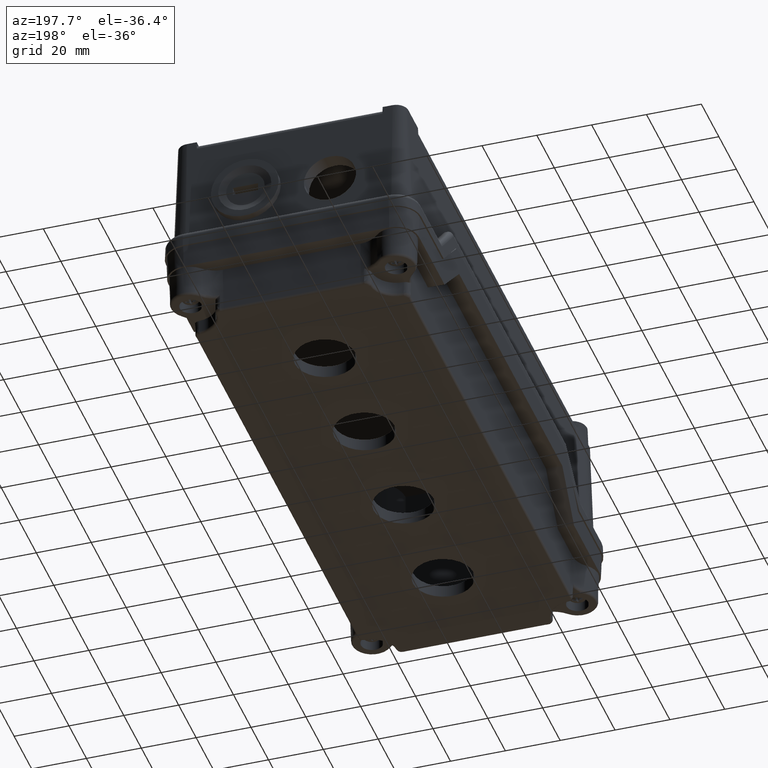
[diagram: clean part render]
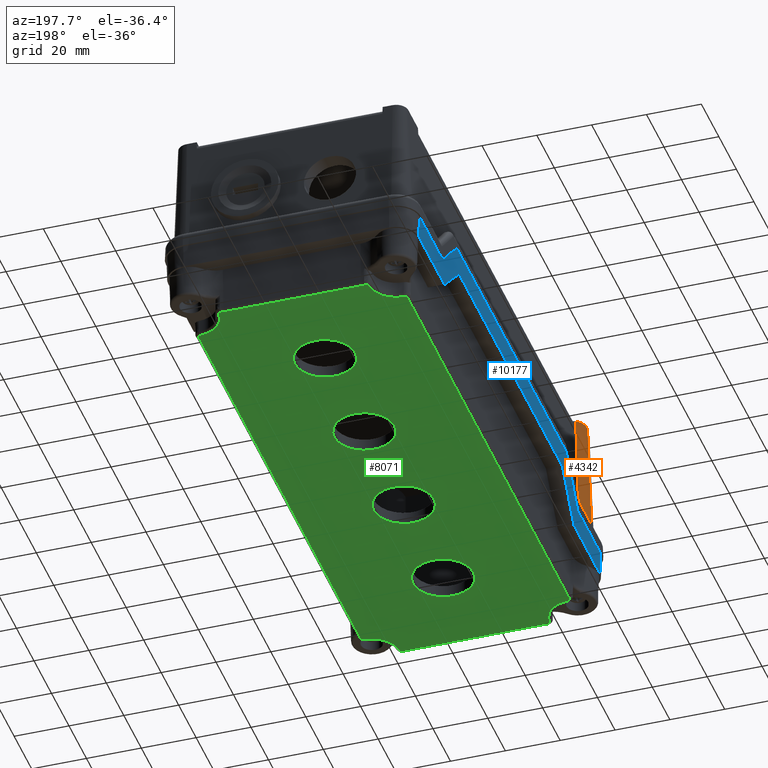
[diagram: same view with three faces highlighted in distinct colors, each labeled with its STEP entity id]
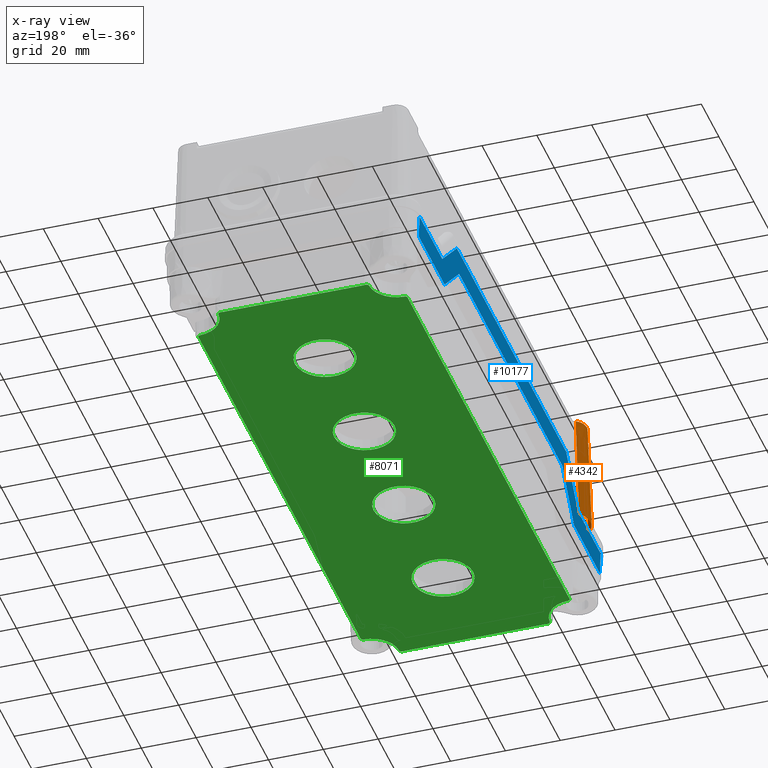
[diagram: x-ray of the same camera — body ghosted, the three highlighted faces saturated]
A machine part, auxiliary view with three faces highlighted in distinct colors.
The next image is the same camera in x-ray (body ghosted, the three faces saturated) — at least one of them is partly hidden behind the body in this view.
Their STEP definitions:

[orange] entity #4342 — the highlighted conical surface has half-angle 2 deg.
#1756=CARTESIAN_POINT('',(-12.974006270551000,-2.559175239061013,6.000000000000005));
#1757=VERTEX_POINT('',#1756);
#1758=CARTESIAN_POINT('',(-12.974006270551000,-11.241650742066010,6.000000000000005));
#1759=VERTEX_POINT('',#1758);
#1760=CARTESIAN_POINT('',(-12.974006270551005,-2.559175239061021,6.000000000000005));
#1761=CARTESIAN_POINT('',(-13.060904264474148,-2.666447606441090,6.000000000000005));
#1762=CARTESIAN_POINT('',(-13.144814452028172,-2.776305068785705,5.994354237025021));
#1763=CARTESIAN_POINT('',(-13.225557656022371,-2.888612788324794,5.984117410958196));
#1764=CARTESIAN_POINT('',(-13.645758073554033,-3.473079942312700,5.930843347325696));
#1765=CARTESIAN_POINT('',(-13.979199199724301,-4.124430074893436,5.752336188187653));
#1766=CARTESIAN_POINT('',(-14.203775100626366,-4.813077662472193,5.577234486236931));
#1767=CARTESIAN_POINT('',(-14.387930804323494,-5.377779309356375,5.433648389012003));
#1768=CARTESIAN_POINT('',(-14.499731291901773,-5.967532217360052,5.294007290955267));
#1769=CARTESIAN_POINT('',(-14.529813160494637,-6.570193104337078,5.256767648057474));
#1770=CARTESIAN_POINT('',(-14.535289148991174,-6.679899191052095,5.249988685657120));
#1771=CARTESIAN_POINT('',(-14.538052036311674,-6.789994687382909,5.246499435461611));
#1772=CARTESIAN_POINT('',(-14.538052036311674,-6.900412990563507,5.246499435461611));
#1773=CARTESIAN_POINT('',(-14.538052036311674,-7.447091790087899,5.246499435461611));
#1774=CARTESIAN_POINT('',(-14.470180084289195,-7.985827483101908,5.338858428683016));
#1775=CARTESIAN_POINT('',(-14.341541713597330,-8.506475028155927,5.459399469649103));
#1776=CARTESIAN_POINT('',(-14.174205645823845,-9.183746610629166,5.616202324754475));
#1777=CARTESIAN_POINT('',(-13.903014312537012,-9.832744098886380,5.810041916490904));
#1778=CARTESIAN_POINT('',(-13.545327437718711,-10.426963227790900,5.916661713486797));
#1779=CARTESIAN_POINT('',(-13.373797212271437,-10.711923477444600,5.967791679676187));
#1780=CARTESIAN_POINT('',(-13.182510471607332,-10.984259998664209,6.000000000000004));
#1781=CARTESIAN_POINT('',(-12.974006270551003,-11.241650742066000,6.000000000000005));
#1782=B_SPLINE_CURVE_WITH_KNOTS('',3,(#1760,#1761,#1762,#1763,#1764,#1765,#1766,#1767,#1768,#1769,#1770,#1771,#1772,#1773,#1774,#1775,#1776,#1777,#1778,#1779,#1780,#1781),.UNSPECIFIED.,.F.,.U.,(4,3,3,3,3,3,3,4),(2.922606312651110,2.965247774180107,3.187160691333260,3.369132707269389,3.402258198223569,3.566261838080886,3.779601948396805,3.881910083796028),.UNSPECIFIED.);
#1783=EDGE_CURVE('',#1757,#1759,#1782,.T.);
#2005=CARTESIAN_POINT('',(-11.905383820165135,-1.500589309104239,6.000000000000005));
#2006=VERTEX_POINT('',#2005);
#2007=CARTESIAN_POINT('',(-7.614908437115618,-6.900412990563511,6.000000000000005));
#2008=DIRECTION('',(0.0,0.0,-1.0));
#2009=DIRECTION('',(-1.0,0.0,0.0));
#2010=AXIS2_PLACEMENT_3D('',#2007,#2008,#2009);
#2011=CIRCLE('',#2010,6.896830779669909);
#2012=EDGE_CURVE('',#1757,#2006,#2011,.T.);
#2067=CARTESIAN_POINT('',(-11.905383820165135,-12.300236672022782,6.000000000000005));
#2068=VERTEX_POINT('',#2067);
#2075=CARTESIAN_POINT('',(-7.614908437115618,-6.900412990563511,6.000000000000005));
#2076=DIRECTION('',(0.0,0.0,-1.0));
#2077=DIRECTION('',(-1.0,0.0,0.0));
#2078=AXIS2_PLACEMENT_3D('',#2075,#2076,#2077);
#2079=CIRCLE('',#2078,6.896830779669909);
#2080=EDGE_CURVE('',#2068,#1759,#2079,.T.);
#2164=CARTESIAN_POINT('',(-10.538066863906121,-2.175440665169649,44.393579754555688));
#2165=VERTEX_POINT('',#2164);
#2211=CARTESIAN_POINT('',(-10.575957144919265,-2.185736012023800,44.069798993404994));
#2212=VERTEX_POINT('',#2211);
#2219=CARTESIAN_POINT('',(-10.538066863906085,-2.175440665169625,44.393579754555674));
#2220=CARTESIAN_POINT('',(-10.559745157438881,-2.184417122751136,44.285574253057369));
#2221=CARTESIAN_POINT('',(-10.572226306559820,-2.187798484328158,44.176636225623810));
#2222=CARTESIAN_POINT('',(-10.575957144919268,-2.185736012023834,44.069798993404987));
#2223=B_SPLINE_CURVE_WITH_KNOTS('',3,(#2219,#2220,#2221,#2222),.UNSPECIFIED.,.F.,.U.,(4,4),(0.572579742723573,0.604512241592894),.UNSPECIFIED.);
#2224=EDGE_CURVE('',#2212,#2165,#2223,.F.);
#2290=CARTESIAN_POINT('',(-11.905383820165131,-1.500589309104238,6.000000000000005));
#2291=CARTESIAN_POINT('',(-11.195643430090493,-1.843162660568200,26.324305575292669));
#2292=CARTESIAN_POINT('',(-10.575957144919265,-2.185736012023800,44.069798993404994));
#2293=B_SPLINE_CURVE_WITH_KNOTS('',2,(#2290,#2291,#2292),.UNSPECIFIED.,.F.,.U.,(3,3),(0.0,3.795830122196244),.UNSPECIFIED.);
#2294=EDGE_CURVE('',#2006,#2212,#2293,.T.);
#3971=CARTESIAN_POINT('',(-10.490180623006921,-2.252843641670209,47.0));
#3972=VERTEX_POINT('',#3971);
#3998=CARTESIAN_POINT('',(-10.490180623006921,-2.252843641670209,47.0));
#3999=DIRECTION('',(-0.018361225507949,0.029678953282320,-0.999390827019096));
#4000=VECTOR('',#3999,2.608008974045256);
#4001=LINE('',#3998,#4000);
#4002=EDGE_CURVE('',#3972,#2165,#4001,.T.);
#4036=CARTESIAN_POINT('',(-10.473632271003474,-11.558179519415560,47.0));
#4037=VERTEX_POINT('',#4036);
#4038=CARTESIAN_POINT('',(-7.614908437115618,-6.900412990563511,47.0));
#4039=DIRECTION('',(0.0,0.0,-1.0));
#4040=DIRECTION('',(-0.526117200614474,0.850412071420432,0.0));
#4041=AXIS2_PLACEMENT_3D('',#4038,#4039,#4040);
#4042=CIRCLE('',#4041,5.465079230508253);
#4043=EDGE_CURVE('',#4037,#3972,#4042,.T.);
#4314=CARTESIAN_POINT('',(-7.614908437115618,-6.900412990563511,46.000000000000007));
#4315=DIRECTION('',(0.0,0.0,-1.0));
#4316=DIRECTION('',(-1.0,0.0,0.0));
#4317=AXIS2_PLACEMENT_3D('',#4314,#4315,#4316);
#4318=CONICAL_SURFACE('',#4317,5.500000000000000,2.0);
#4319=CARTESIAN_POINT('',(-10.508553040495222,-11.577679383375887,46.000000000000007));
#4320=VERTEX_POINT('',#4319);
#4321=CARTESIAN_POINT('',(-10.508553040495222,-11.577679383375887,46.000000000000007));
#4322=CARTESIAN_POINT('',(-11.156889972481345,-11.938958027694440,27.434059402977002));
#4323=CARTESIAN_POINT('',(-11.905383820165131,-12.300236672022784,6.000000000000005));
#4324=B_SPLINE_CURVE_WITH_KNOTS('',2,(#4321,#4322,#4323),.UNSPECIFIED.,.F.,.U.,(3,3),(0.0,4.003091176781688),.UNSPECIFIED.);
#4325=EDGE_CURVE('',#4320,#2068,#4324,.T.);
#4326=ORIENTED_EDGE('',*,*,#4325,.F.);
#4327=CARTESIAN_POINT('',(-10.508553040495219,-11.577679383375855,46.0));
#4328=CARTESIAN_POINT('',(-10.491056182793738,-11.567929451329064,46.501044448794815));
#4329=CARTESIAN_POINT('',(-10.473632271003474,-11.558179519415560,47.000000000000021));
#4330=B_SPLINE_CURVE_WITH_KNOTS('',2,(#4327,#4328,#4329),.UNSPECIFIED.,.F.,.U.,(3,3),(0.010031039750195,0.110110897021433),.UNSPECIFIED.);
#4331=EDGE_CURVE('',#4320,#4037,#4330,.T.);
#4332=ORIENTED_EDGE('',*,*,#4331,.T.);
#4333=ORIENTED_EDGE('',*,*,#4043,.T.);
#4334=ORIENTED_EDGE('',*,*,#4002,.T.);
#4335=ORIENTED_EDGE('',*,*,#2224,.F.);
#4336=ORIENTED_EDGE('',*,*,#2294,.F.);
#4337=ORIENTED_EDGE('',*,*,#2012,.F.);
#4338=ORIENTED_EDGE('',*,*,#1783,.T.);
#4339=ORIENTED_EDGE('',*,*,#2080,.F.);
#4340=EDGE_LOOP('',(#4326,#4332,#4333,#4334,#4335,#4336,#4337,#4338,#4339));
#4341=FACE_OUTER_BOUND('',#4340,.T.);
#4342=ADVANCED_FACE('',(#4341),#4318,.T.);

[blue] entity #10177 — the highlighted planar face has unit normal (-0.9994, 0, -0.0349).
#9040=CARTESIAN_POINT('',(83.462640443142732,-67.297894880833113,23.499999999999986));
#9041=VERTEX_POINT('',#9040);
#9049=CARTESIAN_POINT('',(83.462640443142689,-37.773415432838235,23.499999999999986));
#9050=VERTEX_POINT('',#9049);
#9051=CARTESIAN_POINT('',(83.462640443142689,-37.773415432838235,23.499999999999986));
#9052=DIRECTION('',(0.0,-1.0,0.0));
#9053=VECTOR('',#9052,29.524479447994878);
#9054=LINE('',#9051,#9053);
#9055=EDGE_CURVE('',#9050,#9041,#9054,.T.);
#9100=CARTESIAN_POINT('',(83.986451985518912,-22.773415432838178,8.499999999999954));
#9101=VERTEX_POINT('',#9100);
#9102=CARTESIAN_POINT('',(83.986451985518912,-22.773415432838178,8.499999999999954));
#9103=DIRECTION('',(-0.024685188407832,-0.706891307583164,0.706891307583163));
#9104=VECTOR('',#9103,21.219669614108728);
#9105=LINE('',#9102,#9104);
#9106=EDGE_CURVE('',#9101,#9050,#9105,.T.);
#9139=CARTESIAN_POINT('',(83.986451985518883,95.177625671172009,8.499999999999981));
#9140=VERTEX_POINT('',#9139);
#9141=CARTESIAN_POINT('',(83.986451985518883,95.177625671172009,8.499999999999981));
#9142=DIRECTION('',(0.0,-1.0,0.0));
#9143=VECTOR('',#9142,117.951041104010190);
#9144=LINE('',#9141,#9143);
#9145=EDGE_CURVE('',#9140,#9101,#9144,.T.);
#9170=CARTESIAN_POINT('',(83.462640443142661,110.177625671171970,23.499999999999986));
#9171=VERTEX_POINT('',#9170);
#9172=CARTESIAN_POINT('',(83.462640443142661,110.177625671171970,23.499999999999986));
#9173=DIRECTION('',(0.024685188407832,-0.706891307583163,-0.706891307583165));
#9174=VECTOR('',#9173,21.219669614108639);
#9175=LINE('',#9172,#9174);
#9176=EDGE_CURVE('',#9171,#9140,#9175,.T.);
#9236=CARTESIAN_POINT('',(83.462640443142661,139.702105119166930,23.499999999999986));
#9237=VERTEX_POINT('',#9236);
#9238=CARTESIAN_POINT('',(83.462640443142661,139.702105119166930,23.499999999999986));
#9239=DIRECTION('',(0.0,-1.0,0.0));
#9240=VECTOR('',#9239,29.524479447994963);
#9241=LINE('',#9238,#9240);
#9242=EDGE_CURVE('',#9237,#9171,#9241,.T.);
#9369=CARTESIAN_POINT('',(83.759466983822577,-41.297894880833113,15.0));
#9370=VERTEX_POINT('',#9369);
#9377=CARTESIAN_POINT('',(83.759466983822577,-67.297894880833113,14.999999999999998));
#9378=VERTEX_POINT('',#9377);
#9379=CARTESIAN_POINT('',(83.759466983822577,-67.297894880833113,14.999999999999998));
#9380=DIRECTION('',(0.0,1.0,0.0));
#9381=VECTOR('',#9380,26.0);
#9382=LINE('',#9379,#9381);
#9383=EDGE_CURVE('',#9378,#9370,#9382,.T.);
#9423=CARTESIAN_POINT('',(84.283278526198742,98.702105119166902,7.667951E-015));
#9424=VERTEX_POINT('',#9423);
#9425=CARTESIAN_POINT('',(83.759466983822506,113.702105119166900,15.000000000000009));
#9426=VERTEX_POINT('',#9425);
#9427=CARTESIAN_POINT('',(84.283278526198742,98.702105119166902,7.667951E-015));
#9428=DIRECTION('',(-0.024685188407833,0.706891307583164,0.706891307583164));
#9429=VECTOR('',#9428,21.219669614108668);
#9430=LINE('',#9427,#9429);
#9431=EDGE_CURVE('',#9424,#9426,#9430,.T.);
#9503=CARTESIAN_POINT('',(84.283278526198785,-26.297894880833095,-7.640134E-015));
#9504=VERTEX_POINT('',#9503);
#9505=CARTESIAN_POINT('',(83.759466983822577,-41.297894880833113,15.0));
#9506=DIRECTION('',(0.024685188407831,0.706891307583164,-0.706891307583163));
#9507=VECTOR('',#9506,21.219669614108682);
#9508=LINE('',#9505,#9507);
#9509=EDGE_CURVE('',#9370,#9504,#9508,.T.);
#9590=CARTESIAN_POINT('',(83.759466983822506,139.702105119166930,15.000000000000014));
#9591=VERTEX_POINT('',#9590);
#9599=CARTESIAN_POINT('',(83.759466983822506,113.702105119166900,15.000000000000009));
#9600=DIRECTION('',(0.0,1.0,0.0));
#9601=VECTOR('',#9600,26.000000000000028);
#9602=LINE('',#9599,#9601);
#9603=EDGE_CURVE('',#9426,#9591,#9602,.T.);
#9844=CARTESIAN_POINT('',(83.759466983822577,-67.297894880833113,14.999999999999998));
#9845=DIRECTION('',(-0.034899496702500,0.0,0.999390827019096));
#9846=VECTOR('',#9845,8.505181126539972);
#9847=LINE('',#9844,#9846);
#9848=EDGE_CURVE('',#9378,#9041,#9847,.T.);
#9861=CARTESIAN_POINT('',(84.283278526198785,-26.297894880833095,-7.640134E-015));
#9862=DIRECTION('',(0.0,1.0,0.0));
#9863=VECTOR('',#9862,125.0);
#9864=LINE('',#9861,#9863);
#9865=EDGE_CURVE('',#9504,#9424,#9864,.T.);
#10149=CARTESIAN_POINT('',(83.759466983822506,139.702105119166930,15.000000000000014));
#10150=DIRECTION('',(-0.034899496702500,0.0,0.999390827019096));
#10151=VECTOR('',#10150,8.505181126539956);
#10152=LINE('',#10149,#10151);
#10153=EDGE_CURVE('',#9591,#9237,#10152,.T.);
#10158=CARTESIAN_POINT('',(84.283278526198728,139.702105119166930,0.0));
#10159=DIRECTION('',(0.999390827019096,3.430483E-016,0.034899496702501));
#10160=DIRECTION('',(0.0,1.0,0.0));
#10161=AXIS2_PLACEMENT_3D('',#10158,#10159,#10160);
#10162=PLANE('',#10161);
#10163=ORIENTED_EDGE('',*,*,#9106,.T.);
#10164=ORIENTED_EDGE('',*,*,#9055,.T.);
#10165=ORIENTED_EDGE('',*,*,#9848,.F.);
#10166=ORIENTED_EDGE('',*,*,#9383,.T.);
#10167=ORIENTED_EDGE('',*,*,#9509,.T.);
#10168=ORIENTED_EDGE('',*,*,#9865,.T.);
#10169=ORIENTED_EDGE('',*,*,#9431,.T.);
#10170=ORIENTED_EDGE('',*,*,#9603,.T.);
#10171=ORIENTED_EDGE('',*,*,#10153,.T.);
#10172=ORIENTED_EDGE('',*,*,#9242,.T.);
#10173=ORIENTED_EDGE('',*,*,#9176,.T.);
#10174=ORIENTED_EDGE('',*,*,#9145,.T.);
#10175=EDGE_LOOP('',(#10163,#10164,#10165,#10166,#10167,#10168,#10169,#10170,#10171,#10172,#10173,#10174));
#10176=FACE_OUTER_BOUND('',#10175,.T.);
#10177=ADVANCED_FACE('',(#10176),#10162,.T.);

[green] entity #8071 — the highlighted planar face has unit normal (-0, 0, -1).
#5871=CARTESIAN_POINT('',(-0.336741534578410,127.261391683954880,40.500000000000000));
#5872=VERTEX_POINT('',#5871);
#5888=CARTESIAN_POINT('',(-0.336741534578377,-54.857181445621052,40.500000000000000));
#5889=VERTEX_POINT('',#5888);
#5897=CARTESIAN_POINT('',(-0.336741534578377,-54.857181445621052,40.500000000000000));
#5898=DIRECTION('',(0.0,1.0,0.0));
#5899=VECTOR('',#5898,182.118573129575940);
#5900=LINE('',#5897,#5899);
#5901=EDGE_CURVE('',#5889,#5872,#5900,.T.);
#5911=CARTESIAN_POINT('',(-0.416955998710055,128.585317413578050,40.500000000000000));
#5912=VERTEX_POINT('',#5911);
#5922=CARTESIAN_POINT('',(-11.302430309385482,127.261391683954880,40.500000000000000));
#5923=DIRECTION('',(0.0,0.0,1.000000000000000));
#5924=DIRECTION('',(0.998177473758042,0.060346755356135,0.0));
#5925=AXIS2_PLACEMENT_3D('',#5922,#5923,#5924);
#5926=CIRCLE('',#5925,10.965688774807212);
#5927=EDGE_CURVE('',#5872,#5912,#5926,.T.);
#5939=CARTESIAN_POINT('',(-0.416955998710137,-56.181107175244236,40.500000000000000));
#5940=VERTEX_POINT('',#5939);
#5948=CARTESIAN_POINT('',(-11.302430309385379,-54.857181445621052,40.500000000000000));
#5949=DIRECTION('',(0.0,0.0,1.0));
#5950=DIRECTION('',(0.998177473758042,-0.060346755356137,0.0));
#5951=AXIS2_PLACEMENT_3D('',#5948,#5949,#5950);
#5952=CIRCLE('',#5951,10.965688774807031);
#5953=EDGE_CURVE('',#5940,#5889,#5952,.T.);
#6047=CARTESIAN_POINT('',(0.549705304405506,129.705654910625160,40.500000000000000));
#6048=VERTEX_POINT('',#6047);
#6072=CARTESIAN_POINT('',(-0.416955998710060,128.585317413578050,40.500000000000000));
#6073=CARTESIAN_POINT('',(-0.426482221781448,128.663643149078980,40.500000000000000));
#6074=CARTESIAN_POINT('',(-0.426817835646111,128.824573625471170,40.500000000000028));
#6075=CARTESIAN_POINT('',(-0.370712974018044,129.056888925731780,40.500000000000021));
#6076=CARTESIAN_POINT('',(-0.260859815856747,129.270981056377560,40.500000000000043));
#6077=CARTESIAN_POINT('',(-0.104096722387881,129.452078566095790,40.500000000000043));
#6078=CARTESIAN_POINT('',(0.091745578703160,129.591822197915750,40.500000000000014));
#6079=CARTESIAN_POINT('',(0.312843136760540,129.680440437934460,40.500000000000028));
#6080=CARTESIAN_POINT('',(0.470830399737454,129.703552725720130,40.500000000000000));
#6081=CARTESIAN_POINT('',(0.549705304405506,129.705654910625130,40.500000000000000));
#6082=B_SPLINE_CURVE_WITH_KNOTS('',3,(#6072,#6073,#6074,#6075,#6076,#6077,#6078,#6079,#6080,#6081),.UNSPECIFIED.,.F.,.U.,(4,1,1,1,1,1,1,4),(0.0,0.023670874067073,0.047341748134146,0.071012622201219,0.094683496268292,0.118354370335365,0.142025244402439,0.165696118469512),.UNSPECIFIED.);
#6083=EDGE_CURVE('',#5912,#6048,#6082,.T.);
#6203=CARTESIAN_POINT('',(0.549705304405435,-57.301444672291325,40.500000000000000));
#6204=VERTEX_POINT('',#6203);
#6212=CARTESIAN_POINT('',(0.549705304405435,-57.301444672291339,40.500000000000000));
#6213=CARTESIAN_POINT('',(0.470830399736940,-57.299342487386319,40.500000000000000));
#6214=CARTESIAN_POINT('',(0.234067378005343,-57.264956661985778,40.500000000000014));
#6215=CARTESIAN_POINT('',(-0.015514652527943,-57.128727803565745,40.500000000000057));
#6216=CARTESIAN_POINT('',(-0.182661636983200,-56.956927240014380,40.500000000000043));
#6217=CARTESIAN_POINT('',(-0.278714694588643,-56.831572478084674,40.500000000000057));
#6218=CARTESIAN_POINT('',(-0.338759194122586,-56.715127209668474,40.500000000000028));
#6219=CARTESIAN_POINT('',(-0.371848311757473,-56.621585759763022,40.500000000000028));
#6220=CARTESIAN_POINT('',(-0.396031503747453,-56.546320919170675,40.500000000000028));
#6221=CARTESIAN_POINT('',(-0.426749287938807,-56.400417810618613,40.500000000000036));
#6222=CARTESIAN_POINT('',(-0.426482221781585,-56.259432910745637,40.500000000000000));
#6223=CARTESIAN_POINT('',(-0.416955998710143,-56.181107175244257,40.500000000000000));
#6224=B_SPLINE_CURVE_WITH_KNOTS('',3,(#6212,#6213,#6214,#6215,#6216,#6217,#6218,#6219,#6220,#6221,#6222,#6223),.UNSPECIFIED.,.F.,.U.,(4,1,1,1,1,1,1,1,1,4),(0.0,0.023670874067206,0.071012622201618,0.082848059235221,0.094683496268824,0.118354370336030,0.121313229594431,0.124272088852832,0.142025244403236,0.165696118470443),.UNSPECIFIED.);
#6225=EDGE_CURVE('',#6204,#5940,#6224,.T.);
#6235=CARTESIAN_POINT('',(10.279728734740509,139.435678340960100,40.500000000000000));
#6236=VERTEX_POINT('',#6235);
#6254=CARTESIAN_POINT('',(0.283278526198761,139.702105119166900,40.500000000000000));
#6255=DIRECTION('',(0.0,0.0,1.0));
#6256=DIRECTION('',(0.707106781186545,-0.707106781186550,0.0));
#6257=AXIS2_PLACEMENT_3D('',#6254,#6255,#6256);
#6258=CIRCLE('',#6257,10.0);
#6259=EDGE_CURVE('',#6048,#6236,#6258,.T.);
#6271=CARTESIAN_POINT('',(10.279728734740491,-67.031468102626235,40.500000000000000));
#6272=VERTEX_POINT('',#6271);
#6280=CARTESIAN_POINT('',(0.283278526198749,-67.297894880833098,40.500000000000000));
#6281=DIRECTION('',(0.0,0.0,1.0));
#6282=DIRECTION('',(0.707106781186548,0.707106781186547,0.0));
#6283=AXIS2_PLACEMENT_3D('',#6280,#6281,#6282);
#6284=CIRCLE('',#6283,10.0);
#6285=EDGE_CURVE('',#6272,#6204,#6284,.T.);
#6395=CARTESIAN_POINT('',(11.400066231787598,140.402339644075790,40.500000000000000));
#6396=VERTEX_POINT('',#6395);
#6420=CARTESIAN_POINT('',(10.279728734740514,139.435678340960210,40.500000000000000));
#6421=CARTESIAN_POINT('',(10.281305366113585,139.494834245348730,40.500000000000000));
#6422=CARTESIAN_POINT('',(10.290442530736300,139.574108058955320,40.500000000000014));
#6423=CARTESIAN_POINT('',(10.327701360589286,139.729348092689410,40.500000000000007));
#6424=CARTESIAN_POINT('',(10.394368445427080,139.895002108658020,40.500000000000014));
#6425=CARTESIAN_POINT('',(10.499935812388912,140.042479780744510,40.500000000000021));
#6426=CARTESIAN_POINT('',(10.610011519073684,140.155813268028600,40.500000000000028));
#6427=CARTESIAN_POINT('',(10.733994448527598,140.256491518467020,40.500000000000043));
#6428=CARTESIAN_POINT('',(10.930087005548076,140.356670484120120,40.500000000000014));
#6429=CARTESIAN_POINT('',(11.161999594629528,140.412155563986350,40.500000000000021));
#6430=CARTESIAN_POINT('',(11.321740859225317,140.411865823005400,40.500000000000000));
#6431=CARTESIAN_POINT('',(11.400066231787591,140.402339644075770,40.500000000000000));
#6432=B_SPLINE_CURVE_WITH_KNOTS('',3,(#6420,#6421,#6422,#6423,#6424,#6425,#6426,#6427,#6428,#6429,#6430,#6431),.UNSPECIFIED.,.F.,.U.,(4,1,1,1,1,1,1,1,1,4),(0.0,0.017753073287348,0.023670764383131,0.047341528766261,0.071012293149392,0.076929984245174,0.094683057532522,0.118353821915653,0.142024586298783,0.165695350681914),.UNSPECIFIED.);
#6433=EDGE_CURVE('',#6236,#6396,#6432,.T.);
#6553=CARTESIAN_POINT('',(11.400066231787580,-67.998129405741878,40.500000000000000));
#6554=VERTEX_POINT('',#6553);
#6562=CARTESIAN_POINT('',(11.400066231787584,-67.998129405741878,40.500000000000000));
#6563=CARTESIAN_POINT('',(11.321740859224750,-68.007655584671582,40.500000000000000));
#6564=CARTESIAN_POINT('',(11.082498934690408,-68.008436048963617,40.500000000000021));
#6565=CARTESIAN_POINT('',(10.815638859349372,-67.910170913589823,40.500000000000057));
#6566=CARTESIAN_POINT('',(10.625191949040417,-67.764650366488425,40.500000000000078));
#6567=CARTESIAN_POINT('',(10.511844708894518,-67.654675235715445,40.500000000000085));
#6568=CARTESIAN_POINT('',(10.435415112740509,-67.548255114636731,40.500000000000071));
#6569=CARTESIAN_POINT('',(10.388992703377394,-67.460570353079447,40.500000000000064));
#6570=CARTESIAN_POINT('',(10.354051155022891,-67.389661117339372,40.500000000000057));
#6571=CARTESIAN_POINT('',(10.302276953244975,-67.249824706873014,40.500000000000057));
#6572=CARTESIAN_POINT('',(10.281830909904606,-67.110342641811570,40.500000000000000));
#6573=CARTESIAN_POINT('',(10.279728734740496,-67.031468102626306,40.500000000000000));
#6574=B_SPLINE_CURVE_WITH_KNOTS('',3,(#6562,#6563,#6564,#6565,#6566,#6567,#6568,#6569,#6570,#6571,#6572,#6573),.UNSPECIFIED.,.F.,.U.,(4,1,1,1,1,1,1,1,1,4),(0.0,0.023670764383299,0.071012293149898,0.082847675341548,0.094683057533198,0.118353821916497,0.121312667464410,0.124271513012322,0.142024586299797,0.165695350683096),.UNSPECIFIED.);
#6575=EDGE_CURVE('',#6554,#6272,#6574,.T.);
#6585=CARTESIAN_POINT('',(12.723991961410803,140.322125179943980,40.500000000000000));
#6586=VERTEX_POINT('',#6585);
#6596=CARTESIAN_POINT('',(12.723991961410803,151.287813954751130,40.500000000000000));
#6597=DIRECTION('',(0.0,0.0,1.0));
#6598=DIRECTION('',(-0.060346755356136,-0.998177473758042,0.0));
#6599=AXIS2_PLACEMENT_3D('',#6596,#6597,#6598);
#6600=CIRCLE('',#6599,10.965688774807163);
#6601=EDGE_CURVE('',#6396,#6586,#6600,.T.);
#6613=CARTESIAN_POINT('',(12.723991961410801,-67.917914941610093,40.500000000000000));
#6614=VERTEX_POINT('',#6613);
#6622=CARTESIAN_POINT('',(12.723991961410805,-78.883603716417213,40.500000000000000));
#6623=DIRECTION('',(0.0,0.0,1.0));
#6624=DIRECTION('',(-0.060346755356138,0.998177473758042,0.0));
#6625=AXIS2_PLACEMENT_3D('',#6622,#6623,#6624);
#6626=CIRCLE('',#6625,10.965688774807122);
#6627=EDGE_CURVE('',#6614,#6554,#6626,.T.);
#6645=CARTESIAN_POINT('',(62.842565090986653,140.322125179944070,40.500000000000000));
#6646=VERTEX_POINT('',#6645);
#6661=CARTESIAN_POINT('',(12.723991961410803,140.322125179943980,40.500000000000000));
#6662=DIRECTION('',(1.0,0.0,0.0));
#6663=VECTOR('',#6662,50.118573129575850);
#6664=LINE('',#6661,#6663);
#6665=EDGE_CURVE('',#6586,#6646,#6664,.T.);
#6677=CARTESIAN_POINT('',(62.842565090986710,-67.917914941610221,40.500000000000000));
#6678=VERTEX_POINT('',#6677);
#6686=CARTESIAN_POINT('',(62.842565090986710,-67.917914941610221,40.500000000000000));
#6687=DIRECTION('',(-1.0,0.0,0.0));
#6688=VECTOR('',#6687,50.118573129575907);
#6689=LINE('',#6686,#6688);
#6690=EDGE_CURVE('',#6678,#6614,#6689,.T.);
#6707=CARTESIAN_POINT('',(64.166490820609880,140.402339644075880,40.500000000000000));
#6708=VERTEX_POINT('',#6707);
#6718=CARTESIAN_POINT('',(62.842565090986653,151.287813954751240,40.500000000000000));
#6719=DIRECTION('',(0.0,0.0,1.0));
#6720=DIRECTION('',(0.060346755356139,-0.998177473758042,0.0));
#6721=AXIS2_PLACEMENT_3D('',#6718,#6719,#6720);
#6722=CIRCLE('',#6721,10.965688774807163);
#6723=EDGE_CURVE('',#6646,#6708,#6722,.T.);
#6735=CARTESIAN_POINT('',(64.166490820609951,-67.998129405742077,40.500000000000000));
#6736=VERTEX_POINT('',#6735);
#6744=CARTESIAN_POINT('',(62.842565090986710,-78.883603716417312,40.500000000000000));
#6745=DIRECTION('',(0.0,0.0,1.0));
#6746=DIRECTION('',(0.060346755356140,0.998177473758042,0.0));
#6747=AXIS2_PLACEMENT_3D('',#6744,#6745,#6746);
#6748=CIRCLE('',#6747,10.965688774807038);
#6749=EDGE_CURVE('',#6736,#6678,#6748,.T.);
#6859=CARTESIAN_POINT('',(65.286828317656983,139.435678340960290,40.500000000000000));
#6860=VERTEX_POINT('',#6859);
#6886=CARTESIAN_POINT('',(64.166490820609908,140.402339644075880,40.500000000000000));
#6887=CARTESIAN_POINT('',(64.244816556110848,140.411865867147270,40.500000000000000));
#6888=CARTESIAN_POINT('',(64.385803126534853,140.412130913822440,40.500000000000000));
#6889=CARTESIAN_POINT('',(64.531706268100749,140.381413004439080,40.499999999999979));
#6890=CARTESIAN_POINT('',(64.606971190493411,140.357229710289910,40.499999999999986));
#6891=CARTESIAN_POINT('',(64.700512703077706,140.324140474575100,40.499999999999979));
#6892=CARTESIAN_POINT('',(64.816958183455796,140.264095551519120,40.499999999999972));
#6893=CARTESIAN_POINT('',(64.942312907614792,140.168042524732020,40.499999999999972));
#6894=CARTESIAN_POINT('',(65.114113143421136,140.000895820716290,40.499999999999964));
#6895=CARTESIAN_POINT('',(65.250341381440535,139.751314341323880,40.499999999999986));
#6896=CARTESIAN_POINT('',(65.284726132751970,139.514553245628350,40.500000000000000));
#6897=CARTESIAN_POINT('',(65.286828317656983,139.435678340960290,40.500000000000000));
#6898=B_SPLINE_CURVE_WITH_KNOTS('',3,(#6886,#6887,#6888,#6889,#6890,#6891,#6892,#6893,#6894,#6895,#6896,#6897),.UNSPECIFIED.,.F.,.U.,(4,1,1,1,1,1,1,1,1,4),(0.0,0.023670874067073,0.041424029617379,0.044382888875763,0.047341748134147,0.071012622201220,0.082848059234757,0.094683496268294,0.142025244402441,0.165696118469514),.UNSPECIFIED.);
#6899=EDGE_CURVE('',#6708,#6860,#6898,.T.);
#7019=CARTESIAN_POINT('',(65.286828317657054,-67.031468102626462,40.500000000000000));
#7020=VERTEX_POINT('',#7019);
#7028=CARTESIAN_POINT('',(65.286828317657054,-67.031468102626491,40.500000000000000));
#7029=CARTESIAN_POINT('',(65.284726132752027,-67.110343007294972,40.500000000000000));
#7030=CARTESIAN_POINT('',(65.250341075509127,-67.347104648975147,40.500000000000021));
#7031=CARTESIAN_POINT('',(65.114112660825171,-67.596686286916253,40.500000000000028));
#7032=CARTESIAN_POINT('',(64.942312332366825,-67.763833070765060,40.500000000000043));
#7033=CARTESIAN_POINT('',(64.816957597348107,-67.859886106566094,40.500000000000043));
#7034=CARTESIAN_POINT('',(64.700512177144574,-67.919930909974553,40.500000000000043));
#7035=CARTESIAN_POINT('',(64.606970682334349,-67.953020112342386,40.500000000000036));
#7036=CARTESIAN_POINT('',(64.531705783169159,-67.977203377436226,40.500000000000036));
#7037=CARTESIAN_POINT('',(64.385802651295734,-68.007921251241925,40.500000000000028));
#7038=CARTESIAN_POINT('',(64.244816556111346,-68.007655628813509,40.500000000000000));
#7039=CARTESIAN_POINT('',(64.166490820609965,-67.998129405742063,40.500000000000000));
#7040=B_SPLINE_CURVE_WITH_KNOTS('',3,(#7028,#7029,#7030,#7031,#7032,#7033,#7034,#7035,#7036,#7037,#7038,#7039),.UNSPECIFIED.,.F.,.U.,(4,1,1,1,1,1,1,1,1,4),(0.0,0.023670874067206,0.071012622201619,0.082848059235222,0.094683496268826,0.118354370336032,0.121313229594433,0.124272088852834,0.142025244403238,0.165696118470445),.UNSPECIFIED.);
#7041=EDGE_CURVE('',#7020,#6736,#7040,.T.);
#7051=CARTESIAN_POINT('',(75.016851747991979,129.705654910625190,40.500000000000000));
#7052=VERTEX_POINT('',#7051);
#7070=CARTESIAN_POINT('',(75.283278526198728,139.702105119166930,40.500000000000000));
#7071=DIRECTION('',(0.0,0.0,1.0));
#7072=DIRECTION('',(-0.707106781186552,-0.707106781186543,0.0));
#7073=AXIS2_PLACEMENT_3D('',#7070,#7071,#7072);
#7074=CIRCLE('',#7073,10.0);
#7075=EDGE_CURVE('',#6860,#7052,#7074,.T.);
#7087=CARTESIAN_POINT('',(75.016851747992177,-57.301444672291318,40.500000000000000));
#7088=VERTEX_POINT('',#7087);
#7096=CARTESIAN_POINT('',(75.283278526198799,-67.297894880833070,40.500000000000000));
#7097=DIRECTION('',(0.0,0.0,1.0));
#7098=DIRECTION('',(-0.707106781186543,0.707106781186552,0.0));
#7099=AXIS2_PLACEMENT_3D('',#7096,#7097,#7098);
#7100=CIRCLE('',#7099,9.999999999999998);
#7101=EDGE_CURVE('',#7088,#7020,#7100,.T.);
#7211=CARTESIAN_POINT('',(75.983513051107664,128.585317413578080,40.500000000000000));
#7212=VERTEX_POINT('',#7211);
#7236=CARTESIAN_POINT('',(75.016851747992078,129.705654910625160,40.500000000000000));
#7237=CARTESIAN_POINT('',(75.076007652380596,129.704078279252090,40.500000000000000));
#7238=CARTESIAN_POINT('',(75.155281393558354,129.694941143648800,40.499999999999993));
#7239=CARTESIAN_POINT('',(75.310521416619849,129.657682326354120,40.499999999999993));
#7240=CARTESIAN_POINT('',(75.476175377100930,129.591015274016880,40.499999999999993));
#7241=CARTESIAN_POINT('',(75.623653043629474,129.485447926388590,40.500000000000000));
#7242=CARTESIAN_POINT('',(75.736986519614931,129.375372231852510,40.499999999999993));
#7243=CARTESIAN_POINT('',(75.837664758110776,129.251389314630050,40.499999999999993));
#7244=CARTESIAN_POINT('',(75.937843754867046,129.055296725914790,40.500000000000000));
#7245=CARTESIAN_POINT('',(75.993328846579075,128.823384115109860,40.500000000000007));
#7246=CARTESIAN_POINT('',(75.993039230037297,128.663642786140400,40.500000000000000));
#7247=CARTESIAN_POINT('',(75.983513051107650,128.585317413578110,40.500000000000000));
#7248=B_SPLINE_CURVE_WITH_KNOTS('',3,(#7236,#7237,#7238,#7239,#7240,#7241,#7242,#7243,#7244,#7245,#7246,#7247),.UNSPECIFIED.,.F.,.U.,(4,1,1,1,1,1,1,1,1,4),(0.0,0.017753073287348,0.023670764383131,0.047341528766261,0.071012293149392,0.076929984245174,0.094683057532522,0.118353821915653,0.142024586298783,0.165695350681914),.UNSPECIFIED.);
#7249=EDGE_CURVE('',#7052,#7212,#7248,.T.);
#7369=CARTESIAN_POINT('',(75.983513051107835,-56.181107175244236,40.500000000000000));
#7370=VERTEX_POINT('',#7369);
#7378=CARTESIAN_POINT('',(75.983513051107835,-56.181107175244222,40.500000000000000));
#7379=CARTESIAN_POINT('',(75.993039230037539,-56.259432547807059,40.500000000000000));
#7380=CARTESIAN_POINT('',(75.993820033803431,-56.498673586225983,40.500000000000050));
#7381=CARTESIAN_POINT('',(75.895555127371850,-56.765533385732773,40.500000000000114));
#7382=CARTESIAN_POINT('',(75.750034700342781,-56.955980157212345,40.500000000000142));
#7383=CARTESIAN_POINT('',(75.640059582836201,-57.069327382518125,40.500000000000149));
#7384=CARTESIAN_POINT('',(75.533639395074488,-57.145757173383288,40.500000000000135));
#7385=CARTESIAN_POINT('',(75.445954613426693,-57.192179637212746,40.500000000000128));
#7386=CARTESIAN_POINT('',(75.375045349351339,-57.227121234119174,40.500000000000128));
#7387=CARTESIAN_POINT('',(75.235208930611691,-57.278895492240494,40.500000000000128));
#7388=CARTESIAN_POINT('',(75.095726287177499,-57.299342497127206,40.500000000000000));
#7389=CARTESIAN_POINT('',(75.016851747992234,-57.301444672291318,40.500000000000000));
#7390=B_SPLINE_CURVE_WITH_KNOTS('',3,(#7378,#7379,#7380,#7381,#7382,#7383,#7384,#7385,#7386,#7387,#7388,#7389),.UNSPECIFIED.,.F.,.U.,(4,1,1,1,1,1,1,1,1,4),(0.0,0.023670764383300,0.071012293149899,0.082847675341549,0.094683057533199,0.118353821916499,0.121312667464411,0.124271513012323,0.142024586299798,0.165695350683098),.UNSPECIFIED.);
#7391=EDGE_CURVE('',#7370,#7088,#7390,.T.);
#7401=CARTESIAN_POINT('',(75.903298586975851,127.261391683954860,40.500000000000000));
#7402=VERTEX_POINT('',#7401);
#7412=CARTESIAN_POINT('',(86.868987361782985,127.261391683954880,40.500000000000000));
#7413=DIRECTION('',(0.0,0.0,1.000000000000000));
#7414=DIRECTION('',(-0.998177473758042,0.060346755356136,0.0));
#7415=AXIS2_PLACEMENT_3D('',#7412,#7413,#7414);
#7416=CIRCLE('',#7415,10.965688774807118);
#7417=EDGE_CURVE('',#7212,#7402,#7416,.T.);
#7429=CARTESIAN_POINT('',(75.903298586976035,-54.857181445620952,40.500000000000000));
#7430=VERTEX_POINT('',#7429);
#7438=CARTESIAN_POINT('',(86.868987361783041,-54.857181445620959,40.500000000000000));
#7439=DIRECTION('',(0.0,0.0,1.000000000000000));
#7440=DIRECTION('',(-0.998177473758042,-0.060346755356141,0.0));
#7441=AXIS2_PLACEMENT_3D('',#7438,#7439,#7440);
#7442=CIRCLE('',#7441,10.965688774807003);
#7443=EDGE_CURVE('',#7430,#7370,#7442,.T.);
#7462=CARTESIAN_POINT('',(75.903298586975851,127.261391683954860,40.500000000000000));
#7463=DIRECTION('',(0.0,-1.0,0.0));
#7464=VECTOR('',#7463,182.118573129575790);
#7465=LINE('',#7462,#7464);
#7466=EDGE_CURVE('',#7402,#7430,#7465,.T.);
#7996=CARTESIAN_POINT('',(37.783278526198750,36.202105119166916,40.500000000000000));
#7997=DIRECTION('',(0.0,0.0,1.0));
#7998=DIRECTION('',(1.0,0.0,0.0));
#7999=AXIS2_PLACEMENT_3D('',#7996,#7997,#7998);
#8000=PLANE('',#7999);
#8001=ORIENTED_EDGE('',*,*,#5901,.F.);
#8002=ORIENTED_EDGE('',*,*,#5953,.F.);
#8003=ORIENTED_EDGE('',*,*,#6225,.F.);
#8004=ORIENTED_EDGE('',*,*,#6285,.F.);
#8005=ORIENTED_EDGE('',*,*,#6575,.F.);
#8006=ORIENTED_EDGE('',*,*,#6627,.F.);
#8007=ORIENTED_EDGE('',*,*,#6690,.F.);
#8008=ORIENTED_EDGE('',*,*,#6749,.F.);
#8009=ORIENTED_EDGE('',*,*,#7041,.F.);
#8010=ORIENTED_EDGE('',*,*,#7101,.F.);
#8011=ORIENTED_EDGE('',*,*,#7391,.F.);
#8012=ORIENTED_EDGE('',*,*,#7443,.F.);
#8013=ORIENTED_EDGE('',*,*,#7466,.F.);
#8014=ORIENTED_EDGE('',*,*,#7417,.F.);
#8015=ORIENTED_EDGE('',*,*,#7249,.F.);
#8016=ORIENTED_EDGE('',*,*,#7075,.F.);
#8017=ORIENTED_EDGE('',*,*,#6899,.F.);
#8018=ORIENTED_EDGE('',*,*,#6723,.F.);
#8019=ORIENTED_EDGE('',*,*,#6665,.F.);
#8020=ORIENTED_EDGE('',*,*,#6601,.F.);
#8021=ORIENTED_EDGE('',*,*,#6433,.F.);
#8022=ORIENTED_EDGE('',*,*,#6259,.F.);
#8023=ORIENTED_EDGE('',*,*,#6083,.F.);
#8024=ORIENTED_EDGE('',*,*,#5927,.F.);
#8025=EDGE_LOOP('',(#8001,#8002,#8003,#8004,#8005,#8006,#8007,#8008,#8009,#8010,#8011,#8012,#8013,#8014,#8015,#8016,#8017,#8018,#8019,#8020,#8021,#8022,#8023,#8024));
#8026=FACE_OUTER_BOUND('',#8025,.T.);
#8027=CARTESIAN_POINT('',(48.783278526198757,103.702105119166930,40.500000000000000));
#8028=VERTEX_POINT('',#8027);
#8029=CARTESIAN_POINT('',(37.783278526198750,103.702105119166930,40.500000000000000));
#8030=DIRECTION('',(0.0,0.0,-1.0));
#8031=DIRECTION('',(-1.0,0.0,0.0));
#8032=AXIS2_PLACEMENT_3D('',#8029,#8030,#8031);
#8033=CIRCLE('',#8032,11.0);
#8034=EDGE_CURVE('',#8028,#8028,#8033,.T.);
#8035=ORIENTED_EDGE('',*,*,#8034,.T.);
#8036=EDGE_LOOP('',(#8035));
#8037=FACE_BOUND('',#8036,.T.);
#8038=CARTESIAN_POINT('',(48.783278526198757,58.702105119166923,40.500000000000000));
#8039=VERTEX_POINT('',#8038);
#8040=CARTESIAN_POINT('',(37.783278526198757,58.702105119166923,40.500000000000000));
#8041=DIRECTION('',(0.0,0.0,-1.0));
#8042=DIRECTION('',(-1.0,0.0,0.0));
#8043=AXIS2_PLACEMENT_3D('',#8040,#8041,#8042);
#8044=CIRCLE('',#8043,11.0);
#8045=EDGE_CURVE('',#8039,#8039,#8044,.T.);
#8046=ORIENTED_EDGE('',*,*,#8045,.T.);
#8047=EDGE_LOOP('',(#8046));
#8048=FACE_BOUND('',#8047,.T.);
#8049=CARTESIAN_POINT('',(48.783278526198771,13.702105119166925,40.500000000000000));
#8050=VERTEX_POINT('',#8049);
#8051=CARTESIAN_POINT('',(37.783278526198771,13.702105119166923,40.500000000000000));
#8052=DIRECTION('',(0.0,0.0,-1.0));
#8053=DIRECTION('',(-1.0,0.0,0.0));
#8054=AXIS2_PLACEMENT_3D('',#8051,#8052,#8053);
#8055=CIRCLE('',#8054,11.0);
#8056=EDGE_CURVE('',#8050,#8050,#8055,.T.);
#8057=ORIENTED_EDGE('',*,*,#8056,.T.);
#8058=EDGE_LOOP('',(#8057));
#8059=FACE_BOUND('',#8058,.T.);
#8060=CARTESIAN_POINT('',(48.783278526198771,-31.297894880833077,40.500000000000000));
#8061=VERTEX_POINT('',#8060);
#8062=CARTESIAN_POINT('',(37.783278526198778,-31.297894880833077,40.500000000000000));
#8063=DIRECTION('',(0.0,0.0,-1.0));
#8064=DIRECTION('',(-1.0,0.0,0.0));
#8065=AXIS2_PLACEMENT_3D('',#8062,#8063,#8064);
#8066=CIRCLE('',#8065,11.0);
#8067=EDGE_CURVE('',#8061,#8061,#8066,.T.);
#8068=ORIENTED_EDGE('',*,*,#8067,.T.);
#8069=EDGE_LOOP('',(#8068));
#8070=FACE_BOUND('',#8069,.T.);
#8071=ADVANCED_FACE('',(#8026,#8037,#8048,#8059,#8070),#8000,.T.);